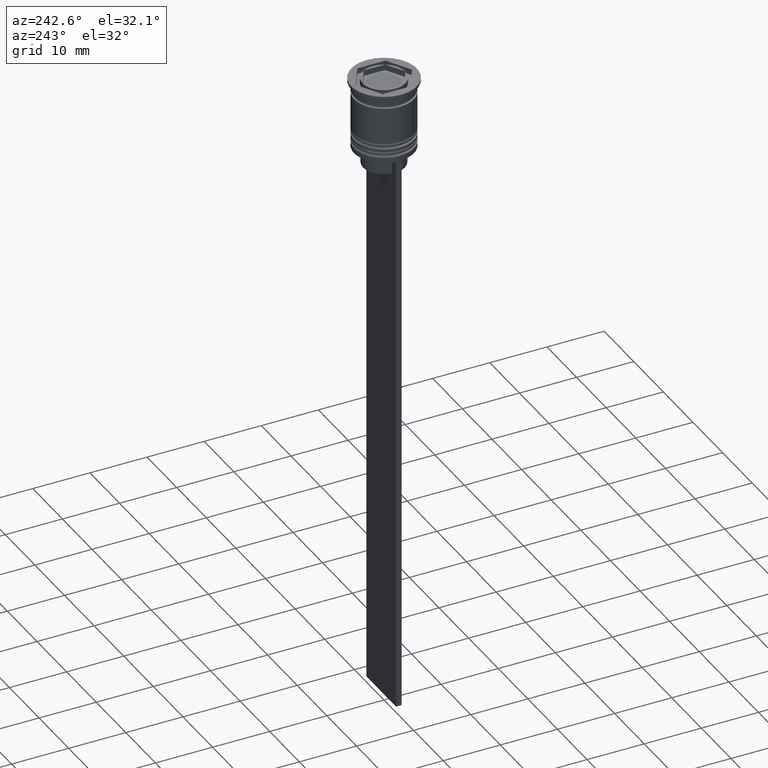
[diagram: clean part render]
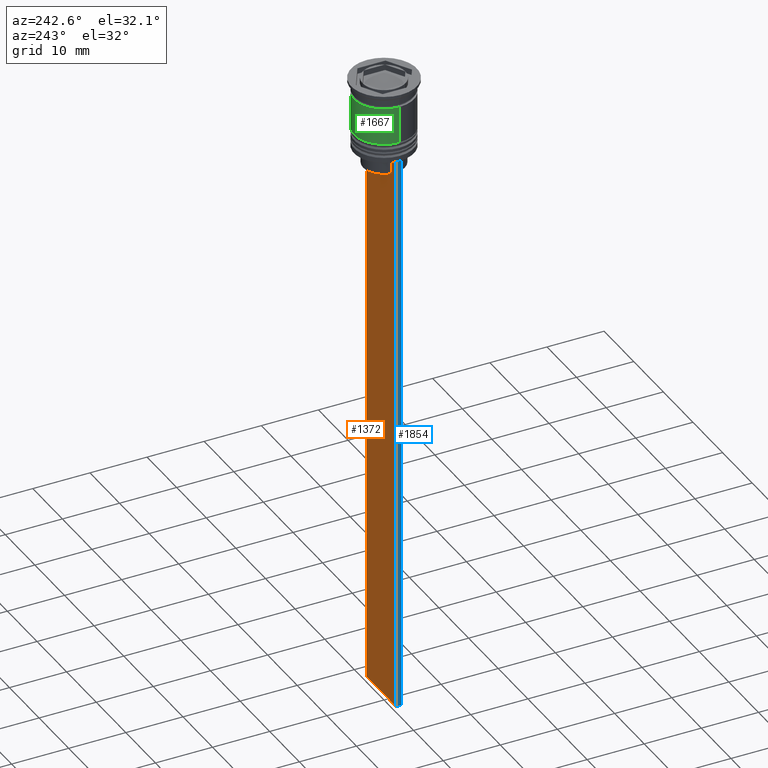
[diagram: same view with three faces highlighted in distinct colors, each labeled with its STEP entity id]
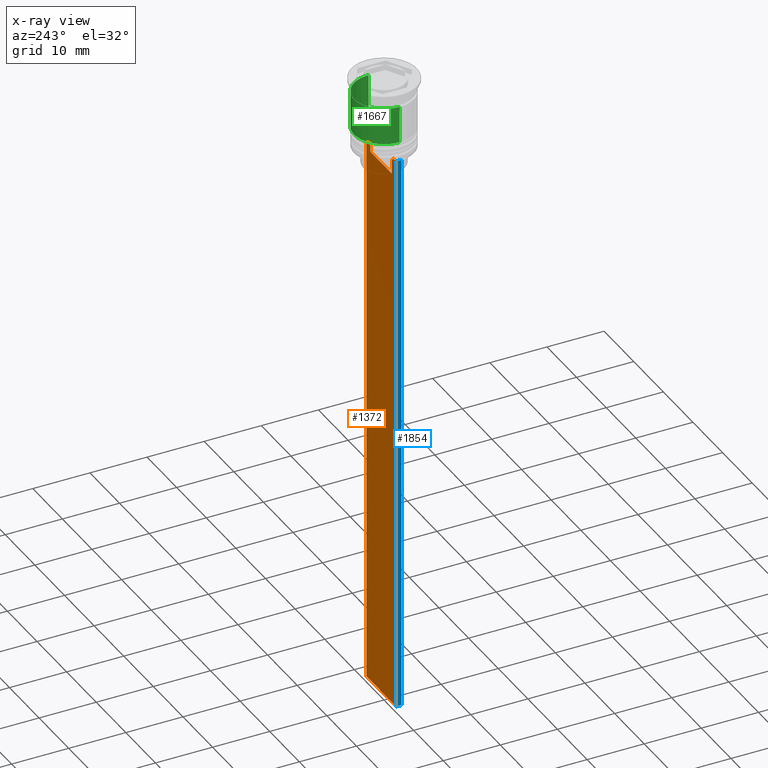
[diagram: x-ray of the same camera — body ghosted, the three highlighted faces saturated]
A machine part, auxiliary view with three faces highlighted in distinct colors.
The next image is the same camera in x-ray (body ghosted, the three faces saturated) — at least one of them is partly hidden behind the body in this view.
Their STEP definitions:

[orange] entity #1372 — the highlighted planar face has unit normal (0, -1, -0).
#8 = DIRECTION ( 'NONE',  ( -0.000000000000000000, -0.000000000000000000, 1.000000000000000000 ) ) ;
#44 = CARTESIAN_POINT ( 'NONE',  ( 0.000000000000000000, 0.4999999999999991673, -15.50000000000000000 ) ) ;
#51 = DIRECTION ( 'NONE',  ( 1.000000000000000000, 0.000000000000000000, 0.000000000000000000 ) ) ;
#78 = VECTOR ( 'NONE', #51, 1000.000000000000000 ) ;
#88 = DIRECTION ( 'NONE',  ( 0.000000000000000000, 0.000000000000000000, -1.000000000000000000 ) ) ;
#124 = CARTESIAN_POINT ( 'NONE',  ( 3.615591237958188042, 0.4999999999999991673, -13.00000000000000178 ) ) ;
#215 = B_SPLINE_CURVE_WITH_KNOTS ( 'NONE', 3,
 ( #124, #476, #1567, #1607 ),
 .UNSPECIFIED., .F., .F.,
 ( 4, 4 ),
 ( 0.01745179617248911533, 0.01816207215777259493 ),
 .UNSPECIFIED. ) ;
#235 = LINE ( 'NONE', #1136, #1005 ) ;
#253 = VERTEX_POINT ( 'NONE', #1685 ) ;
#255 = CARTESIAN_POINT ( 'NONE',  ( 3.615591237958188042, 0.4999999999999991673, -13.00000000000000178 ) ) ;
#263 = VERTEX_POINT ( 'NONE', #279 ) ;
#279 = CARTESIAN_POINT ( 'NONE',  ( 3.615591237958188486, 0.4999999999999991673, -15.50000000000000000 ) ) ;
#282 = VERTEX_POINT ( 'NONE', #635 ) ;
#321 = VERTEX_POINT ( 'NONE', #1033 ) ;
#322 = ORIENTED_EDGE ( 'NONE', *, *, #1384, .T. ) ;
#347 = DIRECTION ( 'NONE',  ( 1.000000000000000000, 0.000000000000000000, 0.000000000000000000 ) ) ;
#394 = DIRECTION ( 'NONE',  ( 1.000000000000000000, 0.000000000000000000, 0.000000000000000000 ) ) ;
#398 = EDGE_CURVE ( 'NONE', #687, #1645, #215, .T. ) ;
#402 = VECTOR ( 'NONE', #1230, 1000.000000000000000 ) ;
#442 = EDGE_CURVE ( 'NONE', #2151, #1767, #2134, .T. ) ;
#476 = CARTESIAN_POINT ( 'NONE',  ( 3.783746406711540722, 0.4999999999999991673, -12.83343003979123509 ) ) ;
#480 = B_SPLINE_CURVE_WITH_KNOTS ( 'NONE', 3,
 ( #2202, #1662, #1458, #1098 ),
 .UNSPECIFIED., .F., .F.,
 ( 4, 4 ),
 ( 0.007067514914986626831, 0.007777582239375527978 ),
 .UNSPECIFIED. ) ;
#513 = CARTESIAN_POINT ( 'NONE',  ( 5.000000000000000000, 0.4999999999999991673, -112.5000000000000000 ) ) ;
#519 = EDGE_CURVE ( 'NONE', #282, #2106, #711, .T. ) ;
#580 = CARTESIAN_POINT ( 'NONE',  ( 5.000000000000000000, 0.4999999999999991673, -2.450124378879110054 ) ) ;
#597 = CARTESIAN_POINT ( 'NONE',  ( -4.999999999999999112, 0.4999999999999991673, -2.450124378879110054 ) ) ;
#635 = CARTESIAN_POINT ( 'NONE',  ( -4.999999999999999112, 0.4999999999999993339, -12.50000000000000000 ) ) ;
#687 = VERTEX_POINT ( 'NONE', #255 ) ;
#696 = CARTESIAN_POINT ( 'NONE',  ( 4.119769411022908834, 0.4999999999999991673, -12.50000000000000000 ) ) ;
#711 = LINE ( 'NONE', #1443, #775 ) ;
#731 = ORIENTED_EDGE ( 'NONE', *, *, #2309, .F. ) ;
#762 = DIRECTION ( 'NONE',  ( 0.000000000000000000, 0.000000000000000000, -1.000000000000000000 ) ) ;
#775 = VECTOR ( 'NONE', #347, 1000.000000000000000 ) ;
#853 = DIRECTION ( 'NONE',  ( 0.000000000000000000, 0.000000000000000000, -1.000000000000000000 ) ) ;
#1005 = VECTOR ( 'NONE', #8, 1000.000000000000000 ) ;
#1027 = ORIENTED_EDGE ( 'NONE', *, *, #442, .T. ) ;
#1033 = CARTESIAN_POINT ( 'NONE',  ( -3.615591237958188486, 0.4999999999999991673, -15.50000000000000000 ) ) ;
#1098 = CARTESIAN_POINT ( 'NONE',  ( -3.615591237958188042, 0.4999999999999991673, -13.00000000000000178 ) ) ;
#1122 = ORIENTED_EDGE ( 'NONE', *, *, #1684, .T. ) ;
#1127 = LINE ( 'NONE', #597, #1323 ) ;
#1136 = CARTESIAN_POINT ( 'NONE',  ( 3.615591237958188042, 0.4999999999999991673, 0.000000000000000000 ) ) ;
#1159 = ORIENTED_EDGE ( 'NONE', *, *, #1897, .T. ) ;
#1162 = LINE ( 'NONE', #1720, #78 ) ;
#1174 = ORIENTED_EDGE ( 'NONE', *, *, #1284, .T. ) ;
#1181 = CARTESIAN_POINT ( 'NONE',  ( 5.000000000000000000, 0.4999999999999991673, -112.5000000000000000 ) ) ;
#1230 = DIRECTION ( 'NONE',  ( -1.000000000000000000, 0.000000000000000000, 0.000000000000000000 ) ) ;
#1257 = FACE_OUTER_BOUND ( 'NONE', #2286, .T. ) ;
#1283 = LINE ( 'NONE', #44, #1517 ) ;
#1284 = EDGE_CURVE ( 'NONE', #2118, #2151, #1599, .T. ) ;
#1297 = PLANE ( 'NONE',  #1473 ) ;
#1323 = VECTOR ( 'NONE', #88, 1000.000000000000000 ) ;
#1372 = ADVANCED_FACE ( 'NONE', ( #1257 ), #1297, .F. ) ;
#1384 = EDGE_CURVE ( 'NONE', #263, #687, #235, .T. ) ;
#1385 = EDGE_CURVE ( 'NONE', #2106, #253, #480, .T. ) ;
#1417 = CARTESIAN_POINT ( 'NONE',  ( -4.119769411022908834, 0.4999999999999991673, -12.50000000000000000 ) ) ;
#1443 = CARTESIAN_POINT ( 'NONE',  ( 5.000000000000000000, 0.4999999999999991673, -12.50000000000000000 ) ) ;
#1458 = CARTESIAN_POINT ( 'NONE',  ( -3.783746449387932920, 0.4999999999999991673, -12.83342999751715752 ) ) ;
#1473 = AXIS2_PLACEMENT_3D ( 'NONE', #580, #1641, #762 ) ;
#1517 = VECTOR ( 'NONE', #394, 1000.000000000000000 ) ;
#1567 = CARTESIAN_POINT ( 'NONE',  ( 3.951794168112527927, 0.4999999999999991673, -12.66675163073525923 ) ) ;
#1596 = DIRECTION ( 'NONE',  ( 0.000000000000000000, 0.000000000000000000, -1.000000000000000000 ) ) ;
#1599 = LINE ( 'NONE', #1612, #2258 ) ;
#1607 = CARTESIAN_POINT ( 'NONE',  ( 4.119769411022908834, 0.4999999999999991673, -12.50000000000000000 ) ) ;
#1608 = LINE ( 'NONE', #2149, #2114 ) ;
#1612 = CARTESIAN_POINT ( 'NONE',  ( 5.000000000000000000, 0.4999999999999991673, -2.450124378879110054 ) ) ;
#1641 = DIRECTION ( 'NONE',  ( 0.000000000000000000, -1.000000000000000000, -0.000000000000000000 ) ) ;
#1645 = VERTEX_POINT ( 'NONE', #696 ) ;
#1662 = CARTESIAN_POINT ( 'NONE',  ( -3.951794205566887985, 0.4999999999999991673, -12.66675159355373737 ) ) ;
#1684 = EDGE_CURVE ( 'NONE', #253, #321, #1608, .T. ) ;
#1685 = CARTESIAN_POINT ( 'NONE',  ( -3.615591237958188042, 0.4999999999999991673, -13.00000000000000178 ) ) ;
#1720 = CARTESIAN_POINT ( 'NONE',  ( 5.000000000000000000, 0.4999999999999991673, -12.50000000000000000 ) ) ;
#1730 = CARTESIAN_POINT ( 'NONE',  ( 5.000000000000000000, 0.4999999999999991673, -12.50000000000000000 ) ) ;
#1767 = VERTEX_POINT ( 'NONE', #2021 ) ;
#1799 = EDGE_CURVE ( 'NONE', #321, #263, #1283, .T. ) ;
#1815 = ORIENTED_EDGE ( 'NONE', *, *, #1799, .T. ) ;
#1897 = EDGE_CURVE ( 'NONE', #1645, #2118, #1162, .T. ) ;
#1980 = ORIENTED_EDGE ( 'NONE', *, *, #519, .T. ) ;
#1992 = ORIENTED_EDGE ( 'NONE', *, *, #1385, .T. ) ;
#2021 = CARTESIAN_POINT ( 'NONE',  ( -4.999999999999999112, 0.4999999999999991673, -112.5000000000000000 ) ) ;
#2106 = VERTEX_POINT ( 'NONE', #1417 ) ;
#2114 = VECTOR ( 'NONE', #1596, 1000.000000000000000 ) ;
#2118 = VERTEX_POINT ( 'NONE', #1730 ) ;
#2134 = LINE ( 'NONE', #513, #402 ) ;
#2149 = CARTESIAN_POINT ( 'NONE',  ( -3.615591237958188042, 0.4999999999999991673, 0.000000000000000000 ) ) ;
#2151 = VERTEX_POINT ( 'NONE', #1181 ) ;
#2186 = ORIENTED_EDGE ( 'NONE', *, *, #398, .T. ) ;
#2202 = CARTESIAN_POINT ( 'NONE',  ( -4.119769411022908834, 0.4999999999999991673, -12.50000000000000000 ) ) ;
#2258 = VECTOR ( 'NONE', #853, 1000.000000000000000 ) ;
#2286 = EDGE_LOOP ( 'NONE', ( #1980, #1992, #1122, #1815, #322, #2186, #1159, #1174, #1027, #731 ) ) ;
#2309 = EDGE_CURVE ( 'NONE', #282, #1767, #1127, .T. ) ;

[blue] entity #1854 — the highlighted planar face has unit normal (-1, 0, 0).
#84 = DIRECTION ( 'NONE',  ( 0.000000000000000000, -1.000000000000000000, 0.000000000000000000 ) ) ;
#88 = DIRECTION ( 'NONE',  ( 0.000000000000000000, 0.000000000000000000, -1.000000000000000000 ) ) ;
#151 = DIRECTION ( 'NONE',  ( 0.000000000000000000, 1.000000000000000000, 0.000000000000000000 ) ) ;
#245 = LINE ( 'NONE', #265, #1401 ) ;
#265 = CARTESIAN_POINT ( 'NONE',  ( -4.999999999999999112, -0.5000000000000008882, -12.50000000000000000 ) ) ;
#282 = VERTEX_POINT ( 'NONE', #635 ) ;
#328 = EDGE_LOOP ( 'NONE', ( #520, #1117, #1998, #714 ) ) ;
#458 = CARTESIAN_POINT ( 'NONE',  ( -4.999999999999999112, -0.5000000000000008882, -112.5000000000000000 ) ) ;
#520 = ORIENTED_EDGE ( 'NONE', *, *, #1907, .F. ) ;
#575 = PLANE ( 'NONE',  #822 ) ;
#588 = CARTESIAN_POINT ( 'NONE',  ( -4.999999999999999112, -0.5000000000000008882, -12.50000000000000000 ) ) ;
#597 = CARTESIAN_POINT ( 'NONE',  ( -4.999999999999999112, 0.4999999999999991673, -2.450124378879110054 ) ) ;
#635 = CARTESIAN_POINT ( 'NONE',  ( -4.999999999999999112, 0.4999999999999993339, -12.50000000000000000 ) ) ;
#714 = ORIENTED_EDGE ( 'NONE', *, *, #810, .F. ) ;
#784 = VECTOR ( 'NONE', #151, 1000.000000000000000 ) ;
#810 = EDGE_CURVE ( 'NONE', #1833, #1513, #1747, .T. ) ;
#822 = AXIS2_PLACEMENT_3D ( 'NONE', #1293, #970, #1143 ) ;
#844 = DIRECTION ( 'NONE',  ( 0.000000000000000000, 0.000000000000000000, -1.000000000000000000 ) ) ;
#848 = LINE ( 'NONE', #2321, #784 ) ;
#970 = DIRECTION ( 'NONE',  ( -1.000000000000000000, 0.000000000000000000, 0.000000000000000000 ) ) ;
#1117 = ORIENTED_EDGE ( 'NONE', *, *, #2309, .T. ) ;
#1127 = LINE ( 'NONE', #597, #1323 ) ;
#1143 = DIRECTION ( 'NONE',  ( 0.000000000000000000, 0.000000000000000000, 1.000000000000000000 ) ) ;
#1227 = CARTESIAN_POINT ( 'NONE',  ( -4.999999999999999112, -0.5000000000000008882, -2.450124378879110054 ) ) ;
#1293 = CARTESIAN_POINT ( 'NONE',  ( -4.999999999999999112, -0.5000000000000008882, -2.450124378879110054 ) ) ;
#1323 = VECTOR ( 'NONE', #88, 1000.000000000000000 ) ;
#1401 = VECTOR ( 'NONE', #84, 1000.000000000000000 ) ;
#1513 = VERTEX_POINT ( 'NONE', #458 ) ;
#1623 = EDGE_CURVE ( 'NONE', #1513, #1767, #848, .T. ) ;
#1747 = LINE ( 'NONE', #1227, #1887 ) ;
#1767 = VERTEX_POINT ( 'NONE', #2021 ) ;
#1833 = VERTEX_POINT ( 'NONE', #588 ) ;
#1854 = ADVANCED_FACE ( 'NONE', ( #2198 ), #575, .T. ) ;
#1887 = VECTOR ( 'NONE', #844, 1000.000000000000000 ) ;
#1907 = EDGE_CURVE ( 'NONE', #282, #1833, #245, .T. ) ;
#1998 = ORIENTED_EDGE ( 'NONE', *, *, #1623, .F. ) ;
#2021 = CARTESIAN_POINT ( 'NONE',  ( -4.999999999999999112, 0.4999999999999991673, -112.5000000000000000 ) ) ;
#2198 = FACE_OUTER_BOUND ( 'NONE', #328, .T. ) ;
#2309 = EDGE_CURVE ( 'NONE', #282, #1767, #1127, .T. ) ;
#2321 = CARTESIAN_POINT ( 'NONE',  ( -4.999999999999999112, -0.5000000000000008882, -112.5000000000000000 ) ) ;

[green] entity #1667 — the highlighted cylindrical surface (edge-blend (fillet) strip) has radius 5.25 mm, axis along (-0, -0, 1).
#23 = VECTOR ( 'NONE', #1935, 1000.000000000000000 ) ;
#41 = EDGE_CURVE ( 'NONE', #1378, #472, #1945, .T. ) ;
#73 = ORIENTED_EDGE ( 'NONE', *, *, #905, .F. ) ;
#286 = DIRECTION ( 'NONE',  ( -0.000000000000000000, -0.000000000000000000, 1.000000000000000000 ) ) ;
#472 = VERTEX_POINT ( 'NONE', #562 ) ;
#554 = AXIS2_PLACEMENT_3D ( 'NONE', #1161, #286, #1892 ) ;
#562 = CARTESIAN_POINT ( 'NONE',  ( -5.249999999999999112, 6.429395695523604153E-16, -2.499999999999999556 ) ) ;
#570 = DIRECTION ( 'NONE',  ( 1.000000000000000000, 0.000000000000000000, 0.000000000000000000 ) ) ;
#641 = CARTESIAN_POINT ( 'NONE',  ( -5.250000000000000000, 6.429395695523604153E-16, 0.000000000000000000 ) ) ;
#675 = CARTESIAN_POINT ( 'NONE',  ( 5.250000000000000888, 0.000000000000000000, -9.000000000000001776 ) ) ;
#690 = CARTESIAN_POINT ( 'NONE',  ( 0.000000000000000000, 0.000000000000000000, 0.000000000000000000 ) ) ;
#718 = ORIENTED_EDGE ( 'NONE', *, *, #739, .T. ) ;
#739 = EDGE_CURVE ( 'NONE', #851, #1378, #1160, .T. ) ;
#783 = AXIS2_PLACEMENT_3D ( 'NONE', #1376, #1010, #570 ) ;
#851 = VERTEX_POINT ( 'NONE', #675 ) ;
#886 = CARTESIAN_POINT ( 'NONE',  ( 5.250000000000000000, 0.000000000000000000, 0.000000000000000000 ) ) ;
#905 = EDGE_CURVE ( 'NONE', #2324, #472, #2000, .T. ) ;
#1010 = DIRECTION ( 'NONE',  ( -0.000000000000000000, -0.000000000000000000, 1.000000000000000000 ) ) ;
#1160 = CIRCLE ( 'NONE', #554, 5.250000000000000888 ) ;
#1161 = CARTESIAN_POINT ( 'NONE',  ( 0.000000000000000000, 0.000000000000000000, -9.000000000000001776 ) ) ;
#1270 = CARTESIAN_POINT ( 'NONE',  ( -5.250000000000000888, 6.429395695523605139E-16, -9.000000000000001776 ) ) ;
#1279 = AXIS2_PLACEMENT_3D ( 'NONE', #690, #1412, #2285 ) ;
#1304 = ORIENTED_EDGE ( 'NONE', *, *, #1784, .F. ) ;
#1376 = CARTESIAN_POINT ( 'NONE',  ( 0.000000000000000000, 0.000000000000000000, -2.499999999999999556 ) ) ;
#1378 = VERTEX_POINT ( 'NONE', #1270 ) ;
#1394 = FACE_OUTER_BOUND ( 'NONE', #2326, .T. ) ;
#1412 = DIRECTION ( 'NONE',  ( -0.000000000000000000, -0.000000000000000000, 1.000000000000000000 ) ) ;
#1667 = ADVANCED_FACE ( 'NONE', ( #1394 ), #1742, .T. ) ;
#1717 = CARTESIAN_POINT ( 'NONE',  ( 5.249999999999999112, 0.000000000000000000, -2.499999999999999556 ) ) ;
#1742 = CYLINDRICAL_SURFACE ( 'NONE', #1279, 5.250000000000000000 ) ;
#1784 = EDGE_CURVE ( 'NONE', #851, #2324, #1984, .T. ) ;
#1892 = DIRECTION ( 'NONE',  ( 1.000000000000000000, 0.000000000000000000, 0.000000000000000000 ) ) ;
#1925 = VECTOR ( 'NONE', #2162, 1000.000000000000000 ) ;
#1935 = DIRECTION ( 'NONE',  ( -0.000000000000000000, -0.000000000000000000, 1.000000000000000000 ) ) ;
#1945 = LINE ( 'NONE', #641, #23 ) ;
#1984 = LINE ( 'NONE', #886, #1925 ) ;
#2000 = CIRCLE ( 'NONE', #783, 5.249999999999999112 ) ;
#2143 = ORIENTED_EDGE ( 'NONE', *, *, #41, .T. ) ;
#2162 = DIRECTION ( 'NONE',  ( -0.000000000000000000, -0.000000000000000000, 1.000000000000000000 ) ) ;
#2285 = DIRECTION ( 'NONE',  ( 1.000000000000000000, 0.000000000000000000, 0.000000000000000000 ) ) ;
#2324 = VERTEX_POINT ( 'NONE', #1717 ) ;
#2326 = EDGE_LOOP ( 'NONE', ( #718, #2143, #73, #1304 ) ) ;